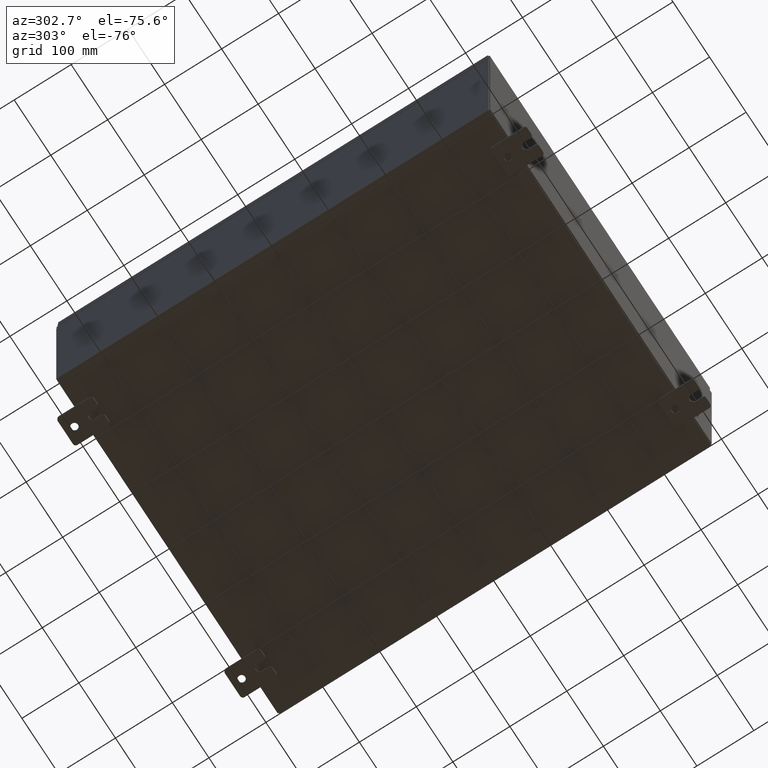
[diagram: clean part render]
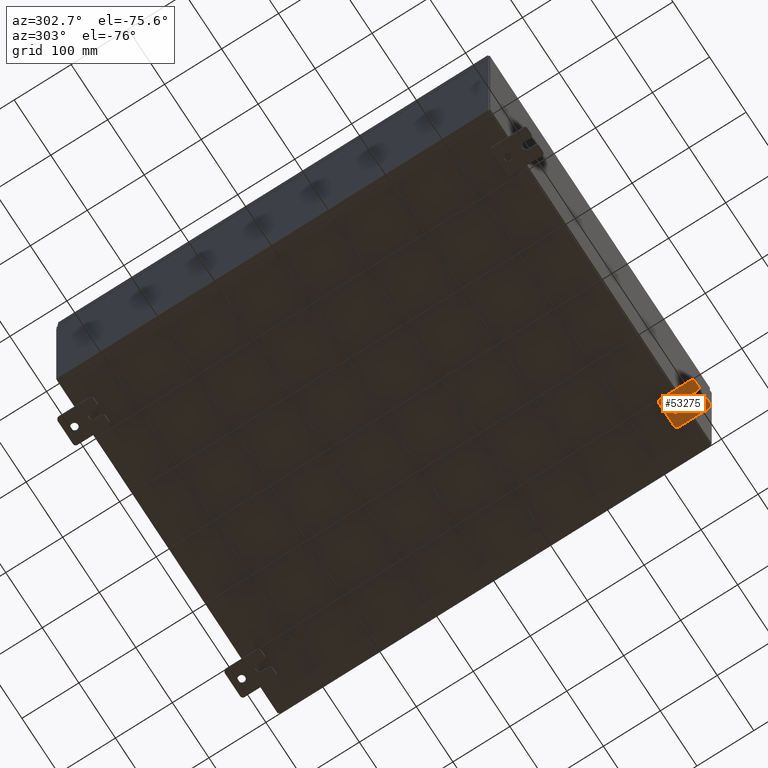
[diagram: same view with one face highlighted and labeled with its STEP entity id]
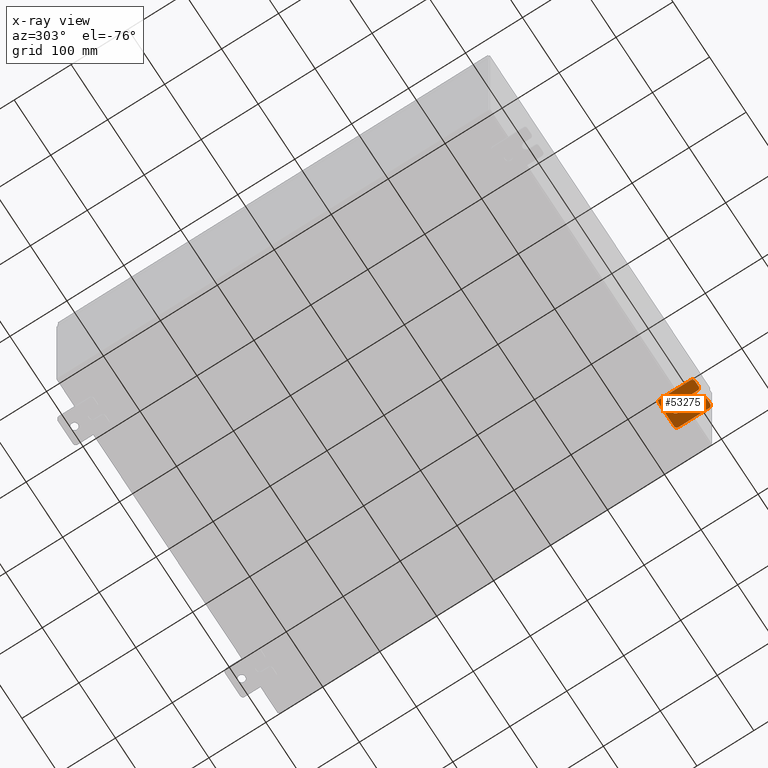
[diagram: x-ray of the same camera — body ghosted, the highlighted face saturated]
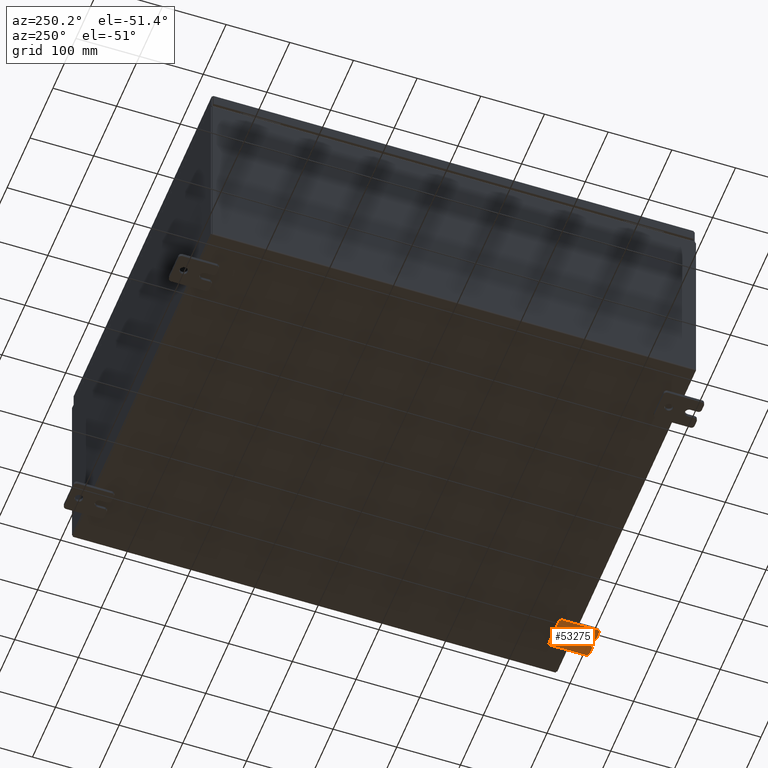
[diagram: same view with one face highlighted and labeled with its STEP entity id]
A machine part, auxiliary view. The second image highlights one B-rep face of the part: STEP entity #53275.
The next image is the same camera in x-ray: the body ghosted, the highlighted face saturated — about 0% of this face is hidden behind the body in this view.
A second angle (auxiliary view) of the same face is appended — the face is thin or edge-on in the first view.
In plain terms, the highlighted planar face has unit normal (0, 0, 1).
Its self-contained STEP definition (entity closure, byte-faithful):
#1367 = VERTEX_POINT ( 'NONE', #10242 ) ;
#1385 = ORIENTED_EDGE ( 'NONE', *, *, #5142, .T. ) ;
#2968 = EDGE_CURVE ( 'NONE', #36242, #35694, #54735, .T. ) ;
#3034 = CIRCLE ( 'NONE', #50690, 0.2499999999999999200 ) ;
#3552 = FACE_OUTER_BOUND ( 'NONE', #16691, .T. ) ;
#4477 = CARTESIAN_POINT ( 'NONE',  ( -0.1879999999999997800, -1.250000000000002200, 0.9999999999999992200 ) ) ;
#4637 = VECTOR ( 'NONE', #23154, 39.37007874015748100 ) ;
#5142 = EDGE_CURVE ( 'NONE', #12286, #1367, #14266, .T. ) ;
#5573 = CARTESIAN_POINT ( 'NONE',  ( -0.1879999999999997800, 0.0000000000000000000, 0.0000000000000000000 ) ) ;
#5596 = CARTESIAN_POINT ( 'NONE',  ( -0.1880000000000001900, -0.6249999999999992200, 6.829619984160658000E-017 ) ) ;
#6387 = CARTESIAN_POINT ( 'NONE',  ( -0.1879999999999997800, -1.060000000000002100, 0.4400000000000016700 ) ) ;
#6749 = AXIS2_PLACEMENT_3D ( 'NONE', #57925, #28289, #62873 ) ;
#6763 = ORIENTED_EDGE ( 'NONE', *, *, #15566, .F. ) ;
#8048 = CARTESIAN_POINT ( 'NONE',  ( -0.1879999999999997800, 1.249999999999997600, 0.9999999999999951200 ) ) ;
#8795 = CARTESIAN_POINT ( 'NONE',  ( -0.1879999999999997800, 1.059999999999993400, -1.000000000000010000 ) ) ;
#9603 = VECTOR ( 'NONE', #63852, 39.37007874015748100 ) ;
#9916 = LINE ( 'NONE', #63717, #61093 ) ;
#10242 = CARTESIAN_POINT ( 'NONE',  ( -0.1879999999999997800, 1.249999999999997300, 0.8099999999999935000 ) ) ;
#10583 = DIRECTION ( 'NONE',  ( -6.829619984160660000E-016, -1.000000000000000000, 0.0000000000000000000 ) ) ;
#11367 = DIRECTION ( 'NONE',  ( 0.0000000000000000000, 0.0000000000000000000, -1.000000000000000000 ) ) ;
#11555 = EDGE_CURVE ( 'NONE', #33210, #1367, #27155, .T. ) ;
#12267 = CARTESIAN_POINT ( 'NONE',  ( -0.1880000000000010000, 0.6249999999999992200, -7.703811342100550500E-020 ) ) ;
#12286 = VERTEX_POINT ( 'NONE', #57004 ) ;
#12899 = CARTESIAN_POINT ( 'NONE',  ( -0.1879999999999997800, -1.250000000000005600, -1.000000000000006200 ) ) ;
#13553 = ORIENTED_EDGE ( 'NONE', *, *, #42482, .T. ) ;
#13568 = AXIS2_PLACEMENT_3D ( 'NONE', #5596, #40312, #10583 ) ;
#14249 = DIRECTION ( 'NONE',  ( 0.0000000000000000000, -1.639108796198553600E-015, -1.000000000000000000 ) ) ;
#14262 = VECTOR ( 'NONE', #14249, 39.37007874015748100 ) ;
#14266 = CIRCLE ( 'NONE', #29610, 0.1900000000000011100 ) ;
#14291 = DIRECTION ( 'NONE',  ( -1.000000000000000000, -0.0000000000000000000, 0.0000000000000000000 ) ) ;
#14540 = LINE ( 'NONE', #34436, #39362 ) ;
#14781 = EDGE_CURVE ( 'NONE', #25749, #19345, #9916, .T. ) ;
#15566 = EDGE_CURVE ( 'NONE', #61646, #30621, #14540, .T. ) ;
#16691 = EDGE_LOOP ( 'NONE', ( #57239, #52092, #21067, #1385, #36421, #21441, #16865, #13553, #6763, #39960, #37812, #27588, #22959, #34469 ) ) ;
#16788 = FACE_BOUND ( 'NONE', #59522, .T. ) ;
#16865 = ORIENTED_EDGE ( 'NONE', *, *, #43069, .F. ) ;
#17272 = DIRECTION ( 'NONE',  ( 0.0000000000000000000, 0.0000000000000000000, -1.000000000000000000 ) ) ;
#19345 = VERTEX_POINT ( 'NONE', #53531 ) ;
#19393 = EDGE_CURVE ( 'NONE', #61034, #39942, #22911, .T. ) ;
#20012 = CARTESIAN_POINT ( 'NONE',  ( -0.1880000000000001900, -0.6249999999999992200, -0.2499999999999998600 ) ) ;
#20430 = DIRECTION ( 'NONE',  ( 0.0000000000000000000, 0.0000000000000000000, -1.000000000000000000 ) ) ;
#21006 = CIRCLE ( 'NONE', #36372, 0.1900000000000011400 ) ;
#21067 = ORIENTED_EDGE ( 'NONE', *, *, #27926, .F. ) ;
#21441 = ORIENTED_EDGE ( 'NONE', *, *, #21948, .T. ) ;
#21869 = CARTESIAN_POINT ( 'NONE',  ( -0.1880000000000010000, 0.6249999999999992200, -0.2499999999999999200 ) ) ;
#21948 = EDGE_CURVE ( 'NONE', #33210, #52421, #60455, .T. ) ;
#22521 = DIRECTION ( 'NONE',  ( -1.000000000000000000, -0.0000000000000000000, 0.0000000000000000000 ) ) ;
#22779 = AXIS2_PLACEMENT_3D ( 'NONE', #43973, #14291, #48941 ) ;
#22911 = LINE ( 'NONE', #48945, #9603 ) ;
#22959 = ORIENTED_EDGE ( 'NONE', *, *, #19393, .F. ) ;
#23154 = DIRECTION ( 'NONE',  ( 0.0000000000000000000, 1.000000000000000000, -1.639108796198558100E-015 ) ) ;
#23755 = DIRECTION ( 'NONE',  ( -1.000000000000000000, -0.0000000000000000000, 0.0000000000000000000 ) ) ;
#24422 = EDGE_CURVE ( 'NONE', #35694, #36242, #3034, .T. ) ;
#24661 = CARTESIAN_POINT ( 'NONE',  ( -0.1879999999999997800, -1.060000000000001200, 0.9999999999999988900 ) ) ;
#25702 = DIRECTION ( 'NONE',  ( 0.0000000000000000000, 1.639108796198553600E-015, 1.000000000000000000 ) ) ;
#25749 = VERTEX_POINT ( 'NONE', #20012 ) ;
#26286 = AXIS2_PLACEMENT_3D ( 'NONE', #5573, #60163, #30537 ) ;
#26398 = CARTESIAN_POINT ( 'NONE',  ( -0.1880000000000004700, -1.060000000000002100, 0.2500000000000005000 ) ) ;
#26770 = CIRCLE ( 'NONE', #6749, 0.1900000000000011100 ) ;
#27155 = LINE ( 'NONE', #28677, #40279 ) ;
#27424 = DIRECTION ( 'NONE',  ( -1.000000000000000000, -0.0000000000000000000, 0.0000000000000000000 ) ) ;
#27588 = ORIENTED_EDGE ( 'NONE', *, *, #43482, .F. ) ;
#27863 = CARTESIAN_POINT ( 'NONE',  ( -0.1879999999999997800, -1.060000000000004500, -1.000000000000006400 ) ) ;
#27926 = EDGE_CURVE ( 'NONE', #12286, #60223, #44682, .T. ) ;
#28289 = DIRECTION ( 'NONE',  ( -1.000000000000000000, -0.0000000000000000000, 0.0000000000000000000 ) ) ;
#28677 = CARTESIAN_POINT ( 'NONE',  ( -0.1879999999999997800, 1.249999999999994200, -1.000000000000010400 ) ) ;
#29610 = AXIS2_PLACEMENT_3D ( 'NONE', #44867, #27424, #20430 ) ;
#30537 = DIRECTION ( 'NONE',  ( -0.0000000000000000000, 0.0000000000000000000, -1.000000000000000000 ) ) ;
#30621 = VERTEX_POINT ( 'NONE', #38437 ) ;
#32453 = AXIS2_PLACEMENT_3D ( 'NONE', #50187, #50342, #52924 ) ;
#33210 = VERTEX_POINT ( 'NONE', #57846 ) ;
#34059 = CIRCLE ( 'NONE', #22779, 0.1900000000000011100 ) ;
#34110 = DIRECTION ( 'NONE',  ( -6.556435184794182400E-016, -1.000000000000000000, -1.639108796198545600E-016 ) ) ;
#34436 = CARTESIAN_POINT ( 'NONE',  ( -0.1879999999999997800, -1.250000000000002200, 0.9999999999999992200 ) ) ;
#34469 = ORIENTED_EDGE ( 'NONE', *, *, #41543, .T. ) ;
#35301 = VERTEX_POINT ( 'NONE', #40953 ) ;
#35694 = VERTEX_POINT ( 'NONE', #37551 ) ;
#36242 = VERTEX_POINT ( 'NONE', #21869 ) ;
#36372 = AXIS2_PLACEMENT_3D ( 'NONE', #6387, #41091, #11367 ) ;
#36421 = ORIENTED_EDGE ( 'NONE', *, *, #11555, .F. ) ;
#36666 = AXIS2_PLACEMENT_3D ( 'NONE', #53364, #23755, #58332 ) ;
#37551 = CARTESIAN_POINT ( 'NONE',  ( -0.1880000000000010000, 0.6249999999999992200, 0.2499999999999999200 ) ) ;
#37812 = ORIENTED_EDGE ( 'NONE', *, *, #14781, .F. ) ;
#38437 = CARTESIAN_POINT ( 'NONE',  ( -0.1879999999999997800, -1.250000000000005300, -0.8100000000000047200 ) ) ;
#38819 = CARTESIAN_POINT ( 'NONE',  ( -0.1879999999999997800, -1.250000000000002400, 0.8099999999999980500 ) ) ;
#39055 = VERTEX_POINT ( 'NONE', #27863 ) ;
#39362 = VECTOR ( 'NONE', #63846, 39.37007874015748100 ) ;
#39942 = VERTEX_POINT ( 'NONE', #64071 ) ;
#39960 = ORIENTED_EDGE ( 'NONE', *, *, #55146, .T. ) ;
#40279 = VECTOR ( 'NONE', #25702, 39.37007874015748100 ) ;
#40312 = DIRECTION ( 'NONE',  ( -1.000000000000000000, 6.523827964459549700E-016, 5.163192708025532000E-017 ) ) ;
#40953 = CARTESIAN_POINT ( 'NONE',  ( -0.1879999999999997800, -1.250000000000003100, 0.4400000000000020000 ) ) ;
#41091 = DIRECTION ( 'NONE',  ( -1.000000000000000000, -0.0000000000000000000, 0.0000000000000000000 ) ) ;
#41543 = EDGE_CURVE ( 'NONE', #61034, #35301, #21006, .T. ) ;
#42482 = EDGE_CURVE ( 'NONE', #39055, #30621, #34059, .T. ) ;
#42513 = ORIENTED_EDGE ( 'NONE', *, *, #24422, .T. ) ;
#42582 = ORIENTED_EDGE ( 'NONE', *, *, #2968, .T. ) ;
#43069 = EDGE_CURVE ( 'NONE', #39055, #52421, #57399, .T. ) ;
#43149 = VECTOR ( 'NONE', #57448, 39.37007874015748100 ) ;
#43482 = EDGE_CURVE ( 'NONE', #39942, #25749, #46497, .T. ) ;
#43973 = CARTESIAN_POINT ( 'NONE',  ( -0.1879999999999997800, -1.060000000000004100, -0.8100000000000050500 ) ) ;
#44682 = LINE ( 'NONE', #8048, #43149 ) ;
#44867 = CARTESIAN_POINT ( 'NONE',  ( -0.1879999999999997800, 1.059999999999996300, 0.8099999999999938400 ) ) ;
#46497 = CIRCLE ( 'NONE', #13568, 0.2499999999999999200 ) ;
#46896 = DIRECTION ( 'NONE',  ( 1.000000000000000000, -0.0000000000000000000, -5.163192708025532000E-017 ) ) ;
#48941 = DIRECTION ( 'NONE',  ( 0.0000000000000000000, 0.0000000000000000000, -1.000000000000000000 ) ) ;
#48945 = CARTESIAN_POINT ( 'NONE',  ( -0.1880000000000005800, -1.250000000000003800, 0.2500000000000005000 ) ) ;
#49791 = PLANE ( 'NONE',  #26286 ) ;
#50187 = CARTESIAN_POINT ( 'NONE',  ( -0.1880000000000010000, 0.6249999999999992200, -7.703811342100550500E-020 ) ) ;
#50342 = DIRECTION ( 'NONE',  ( 1.000000000000000000, -0.0000000000000000000, -5.163192708025532000E-017 ) ) ;
#50690 = AXIS2_PLACEMENT_3D ( 'NONE', #12267, #46896, #17272 ) ;
#50697 = LINE ( 'NONE', #4477, #14262 ) ;
#52092 = ORIENTED_EDGE ( 'NONE', *, *, #55209, .T. ) ;
#52111 = CARTESIAN_POINT ( 'NONE',  ( -0.1879999999999997800, 1.059999999999993600, -0.8100000000000089400 ) ) ;
#52421 = VERTEX_POINT ( 'NONE', #8795 ) ;
#52924 = DIRECTION ( 'NONE',  ( 0.0000000000000000000, 0.0000000000000000000, -1.000000000000000000 ) ) ;
#53275 = ADVANCED_FACE ( 'NONE', ( #16788, #3552 ), #49791, .F. ) ;
#53364 = CARTESIAN_POINT ( 'NONE',  ( -0.1879999999999997800, -1.060000000000001600, 0.8099999999999978300 ) ) ;
#53531 = CARTESIAN_POINT ( 'NONE',  ( -0.1880000000000004700, -1.060000000000003400, -0.2499999999999994400 ) ) ;
#54735 = CIRCLE ( 'NONE', #32453, 0.2499999999999999200 ) ;
#55146 = EDGE_CURVE ( 'NONE', #61646, #19345, #26770, .T. ) ;
#55209 = EDGE_CURVE ( 'NONE', #62766, #60223, #63093, .T. ) ;
#57004 = CARTESIAN_POINT ( 'NONE',  ( -0.1879999999999997800, 1.059999999999996500, 0.9999999999999953400 ) ) ;
#57091 = DIRECTION ( 'NONE',  ( 0.0000000000000000000, 0.0000000000000000000, -1.000000000000000000 ) ) ;
#57191 = EDGE_CURVE ( 'NONE', #62766, #35301, #50697, .T. ) ;
#57239 = ORIENTED_EDGE ( 'NONE', *, *, #57191, .F. ) ;
#57399 = LINE ( 'NONE', #12899, #4637 ) ;
#57448 = DIRECTION ( 'NONE',  ( 0.0000000000000000000, -1.000000000000000000, 1.639108796198558100E-015 ) ) ;
#57846 = CARTESIAN_POINT ( 'NONE',  ( -0.1879999999999997800, 1.249999999999994700, -0.8100000000000092700 ) ) ;
#57925 = CARTESIAN_POINT ( 'NONE',  ( -0.1879999999999997800, -1.060000000000003400, -0.4400000000000005000 ) ) ;
#58332 = DIRECTION ( 'NONE',  ( 0.0000000000000000000, 7.189073667537492800E-016, -1.000000000000000000 ) ) ;
#59320 = AXIS2_PLACEMENT_3D ( 'NONE', #52111, #22521, #57091 ) ;
#59522 = EDGE_LOOP ( 'NONE', ( #42582, #42513 ) ) ;
#60163 = DIRECTION ( 'NONE',  ( 1.000000000000000000, 0.0000000000000000000, -0.0000000000000000000 ) ) ;
#60223 = VERTEX_POINT ( 'NONE', #24661 ) ;
#60455 = CIRCLE ( 'NONE', #59320, 0.1900000000000011100 ) ;
#60825 = CARTESIAN_POINT ( 'NONE',  ( -0.1879999999999997800, -1.250000000000004700, -0.4400000000000002200 ) ) ;
#61034 = VERTEX_POINT ( 'NONE', #26398 ) ;
#61093 = VECTOR ( 'NONE', #34110, 39.37007874015748100 ) ;
#61646 = VERTEX_POINT ( 'NONE', #60825 ) ;
#62766 = VERTEX_POINT ( 'NONE', #38819 ) ;
#62873 = DIRECTION ( 'NONE',  ( 0.0000000000000000000, 0.0000000000000000000, -1.000000000000000000 ) ) ;
#63093 = CIRCLE ( 'NONE', #36666, 0.1900000000000011100 ) ;
#63717 = CARTESIAN_POINT ( 'NONE',  ( -0.1880000000000001900, -0.6249999999999992200, -0.2499999999999993900 ) ) ;
#63846 = DIRECTION ( 'NONE',  ( 0.0000000000000000000, -1.639108796198553600E-015, -1.000000000000000000 ) ) ;
#63852 = DIRECTION ( 'NONE',  ( 6.556435184794182400E-016, 1.000000000000000000, 0.0000000000000000000 ) ) ;
#64071 = CARTESIAN_POINT ( 'NONE',  ( -0.1880000000000001900, -0.6249999999999992200, 0.2500000000000005000 ) ) ;